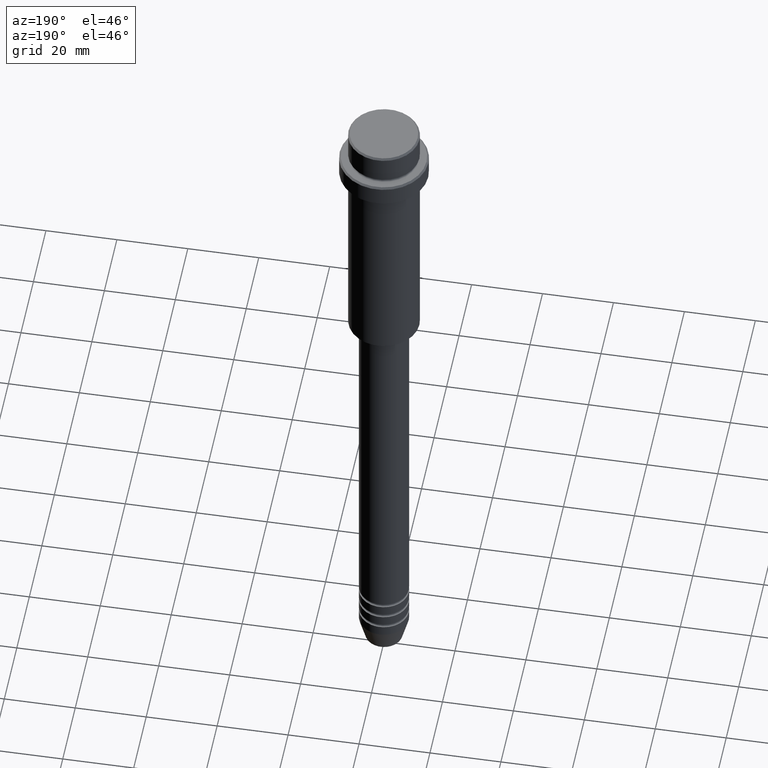
[diagram: clean part render]
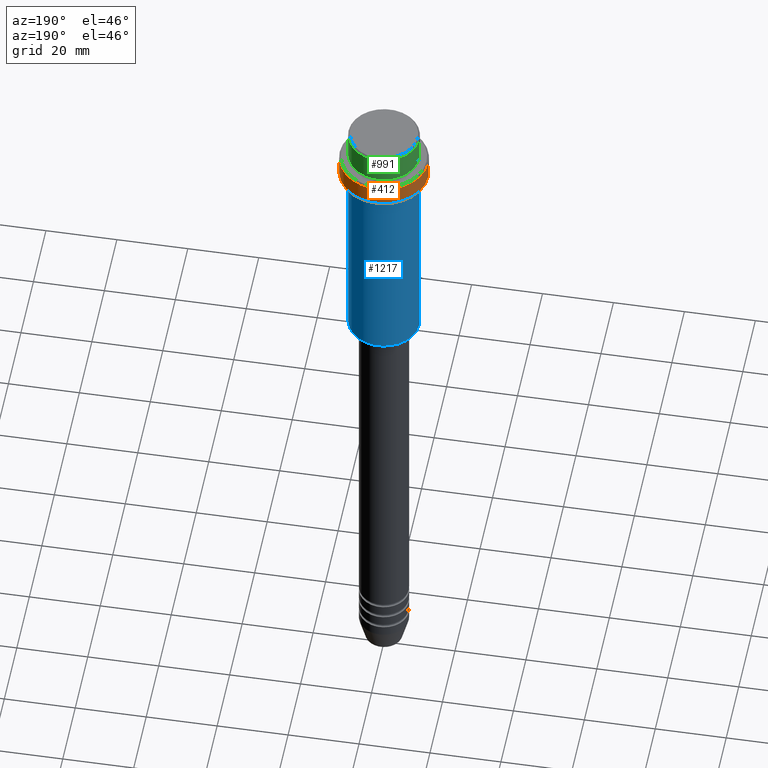
[diagram: same view with three faces highlighted in distinct colors, each labeled with its STEP entity id]
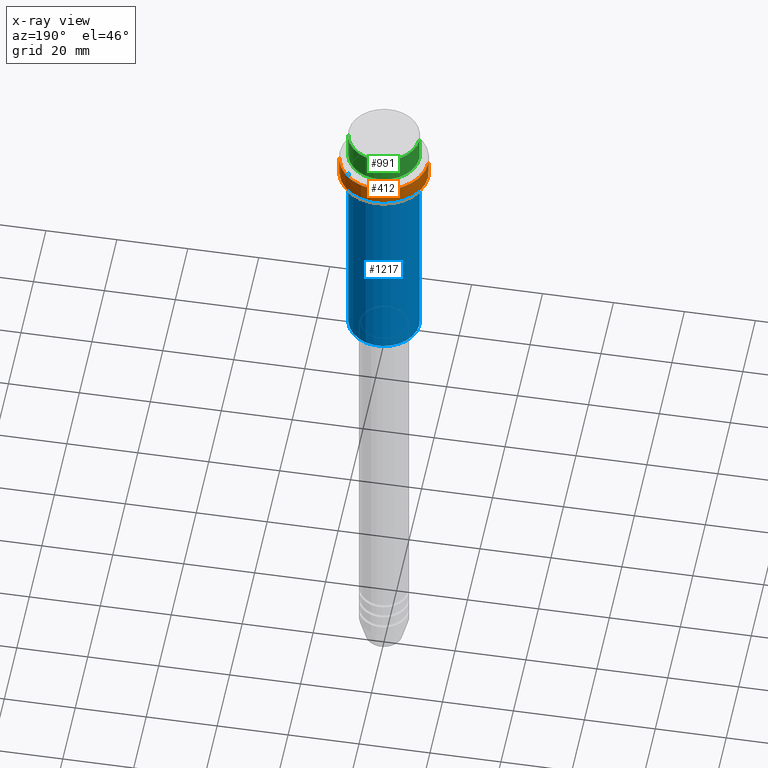
[diagram: x-ray of the same camera — body ghosted, the three highlighted faces saturated]
A machine part, auxiliary view with three faces highlighted in distinct colors.
The next image is the same camera in x-ray (body ghosted, the three faces saturated) — at least one of them is partly hidden behind the body in this view.
Their STEP definitions:

[orange] entity #412 — the highlighted cylindrical surface (partial cylindrical patch) has radius 12.5 mm, axis along (-0, -0, 1).
#59 = ORIENTED_EDGE ( 'NONE', *, *, #205, .T. ) ;
#90 = DIRECTION ( 'NONE',  ( -0.000000000000000000, -0.000000000000000000, 1.000000000000000000 ) ) ;
#109 = DIRECTION ( 'NONE',  ( -0.000000000000000000, -0.000000000000000000, 1.000000000000000000 ) ) ;
#205 = EDGE_CURVE ( 'NONE', #1361, #556, #396, .T. ) ;
#234 = LINE ( 'NONE', #995, #909 ) ;
#238 = EDGE_CURVE ( 'NONE', #556, #487, #682, .T. ) ;
#330 = DIRECTION ( 'NONE',  ( 1.000000000000000000, 0.000000000000000000, 0.000000000000000000 ) ) ;
#396 = LINE ( 'NONE', #949, #1130 ) ;
#398 = EDGE_CURVE ( 'NONE', #1013, #487, #234, .T. ) ;
#405 = DIRECTION ( 'NONE',  ( 1.000000000000000000, 0.000000000000000000, 0.000000000000000000 ) ) ;
#412 = ADVANCED_FACE ( 'NONE', ( #445 ), #1297, .T. ) ;
#445 = FACE_OUTER_BOUND ( 'NONE', #726, .T. ) ;
#477 = AXIS2_PLACEMENT_3D ( 'NONE', #544, #109, #1200 ) ;
#478 = CARTESIAN_POINT ( 'NONE',  ( -12.50000000000000000, 1.530808498934191521E-15, -15.00000000000000000 ) ) ;
#487 = VERTEX_POINT ( 'NONE', #1119 ) ;
#544 = CARTESIAN_POINT ( 'NONE',  ( 0.000000000000000000, 0.000000000000000000, -15.00000000000000000 ) ) ;
#550 = CIRCLE ( 'NONE', #477, 12.50000000000000000 ) ;
#556 = VERTEX_POINT ( 'NONE', #809 ) ;
#576 = CARTESIAN_POINT ( 'NONE',  ( 0.000000000000000000, 0.000000000000000000, 0.000000000000000000 ) ) ;
#682 = CIRCLE ( 'NONE', #1222, 12.50000000000000000 ) ;
#726 = EDGE_LOOP ( 'NONE', ( #1375, #59, #968, #1411 ) ) ;
#738 = DIRECTION ( 'NONE',  ( 0.000000000000000000, 0.000000000000000000, -1.000000000000000000 ) ) ;
#753 = EDGE_CURVE ( 'NONE', #1013, #1361, #550, .T. ) ;
#769 = DIRECTION ( 'NONE',  ( -0.000000000000000000, -0.000000000000000000, 1.000000000000000000 ) ) ;
#809 = CARTESIAN_POINT ( 'NONE',  ( -12.50000000000000000, 1.530808498934191521E-15, -9.500000000000005329 ) ) ;
#830 = CARTESIAN_POINT ( 'NONE',  ( 12.50000000000000000, 0.000000000000000000, -15.00000000000000000 ) ) ;
#909 = VECTOR ( 'NONE', #769, 1000.000000000000000 ) ;
#949 = CARTESIAN_POINT ( 'NONE',  ( -12.50000000000000000, 1.530808498934191521E-15, 0.000000000000000000 ) ) ;
#968 = ORIENTED_EDGE ( 'NONE', *, *, #238, .T. ) ;
#995 = CARTESIAN_POINT ( 'NONE',  ( 12.50000000000000000, 0.000000000000000000, 0.000000000000000000 ) ) ;
#1012 = DIRECTION ( 'NONE',  ( -0.000000000000000000, -0.000000000000000000, 1.000000000000000000 ) ) ;
#1013 = VERTEX_POINT ( 'NONE', #830 ) ;
#1086 = AXIS2_PLACEMENT_3D ( 'NONE', #576, #1012, #330 ) ;
#1119 = CARTESIAN_POINT ( 'NONE',  ( 12.50000000000000000, 0.000000000000000000, -9.500000000000005329 ) ) ;
#1130 = VECTOR ( 'NONE', #90, 1000.000000000000000 ) ;
#1200 = DIRECTION ( 'NONE',  ( 1.000000000000000000, 0.000000000000000000, 0.000000000000000000 ) ) ;
#1222 = AXIS2_PLACEMENT_3D ( 'NONE', #1399, #738, #405 ) ;
#1297 = CYLINDRICAL_SURFACE ( 'NONE', #1086, 12.50000000000000000 ) ;
#1361 = VERTEX_POINT ( 'NONE', #478 ) ;
#1375 = ORIENTED_EDGE ( 'NONE', *, *, #753, .T. ) ;
#1399 = CARTESIAN_POINT ( 'NONE',  ( 0.000000000000000000, 0.000000000000000000, -9.500000000000005329 ) ) ;
#1411 = ORIENTED_EDGE ( 'NONE', *, *, #398, .F. ) ;

[blue] entity #1217 — the highlighted cylindrical surface (edge-blend (fillet) strip) has radius 10 mm, axis along (-0, -0, 1).
#4 = AXIS2_PLACEMENT_3D ( 'NONE', #493, #938, #1359 ) ;
#52 = DIRECTION ( 'NONE',  ( -0.000000000000000000, -0.000000000000000000, 1.000000000000000000 ) ) ;
#114 = AXIS2_PLACEMENT_3D ( 'NONE', #186, #639, #934 ) ;
#158 = EDGE_CURVE ( 'NONE', #953, #907, #349, .T. ) ;
#186 = CARTESIAN_POINT ( 'NONE',  ( 0.000000000000000000, 0.000000000000000000, -16.00000000000000000 ) ) ;
#285 = VERTEX_POINT ( 'NONE', #973 ) ;
#299 = VECTOR ( 'NONE', #52, 1000.000000000000000 ) ;
#334 = CYLINDRICAL_SURFACE ( 'NONE', #733, 9.999999999999998224 ) ;
#349 = CIRCLE ( 'NONE', #4, 9.999999999999998224 ) ;
#364 = CARTESIAN_POINT ( 'NONE',  ( -9.999999999999998224, 1.224646799147353059E-15, -74.50000000000001421 ) ) ;
#383 = ORIENTED_EDGE ( 'NONE', *, *, #158, .T. ) ;
#415 = EDGE_LOOP ( 'NONE', ( #383, #1379, #810, #1102 ) ) ;
#493 = CARTESIAN_POINT ( 'NONE',  ( 0.000000000000000000, 0.000000000000000000, -74.50000000000001421 ) ) ;
#509 = VECTOR ( 'NONE', #537, 1000.000000000000000 ) ;
#523 = CARTESIAN_POINT ( 'NONE',  ( -9.999999999999998224, 1.224646799147353059E-15, -16.00000000000000000 ) ) ;
#537 = DIRECTION ( 'NONE',  ( -0.000000000000000000, -0.000000000000000000, 1.000000000000000000 ) ) ;
#639 = DIRECTION ( 'NONE',  ( -0.000000000000000000, -0.000000000000000000, 1.000000000000000000 ) ) ;
#671 = DIRECTION ( 'NONE',  ( 1.000000000000000000, 0.000000000000000000, 0.000000000000000000 ) ) ;
#723 = CARTESIAN_POINT ( 'NONE',  ( -9.999999999999998224, 1.224646799147353059E-15, 0.000000000000000000 ) ) ;
#733 = AXIS2_PLACEMENT_3D ( 'NONE', #1074, #970, #671 ) ;
#802 = CIRCLE ( 'NONE', #114, 9.999999999999998224 ) ;
#810 = ORIENTED_EDGE ( 'NONE', *, *, #1061, .F. ) ;
#884 = LINE ( 'NONE', #1308, #509 ) ;
#907 = VERTEX_POINT ( 'NONE', #364 ) ;
#934 = DIRECTION ( 'NONE',  ( 1.000000000000000000, 0.000000000000000000, 0.000000000000000000 ) ) ;
#938 = DIRECTION ( 'NONE',  ( -0.000000000000000000, -0.000000000000000000, 1.000000000000000000 ) ) ;
#953 = VERTEX_POINT ( 'NONE', #1235 ) ;
#970 = DIRECTION ( 'NONE',  ( -0.000000000000000000, -0.000000000000000000, 1.000000000000000000 ) ) ;
#973 = CARTESIAN_POINT ( 'NONE',  ( 9.999999999999998224, 0.000000000000000000, -16.00000000000000000 ) ) ;
#1048 = VERTEX_POINT ( 'NONE', #523 ) ;
#1061 = EDGE_CURVE ( 'NONE', #285, #1048, #802, .T. ) ;
#1074 = CARTESIAN_POINT ( 'NONE',  ( 0.000000000000000000, 0.000000000000000000, 0.000000000000000000 ) ) ;
#1102 = ORIENTED_EDGE ( 'NONE', *, *, #1212, .F. ) ;
#1134 = LINE ( 'NONE', #723, #299 ) ;
#1212 = EDGE_CURVE ( 'NONE', #953, #285, #884, .T. ) ;
#1217 = ADVANCED_FACE ( 'NONE', ( #1414 ), #334, .T. ) ;
#1235 = CARTESIAN_POINT ( 'NONE',  ( 9.999999999999998224, 0.000000000000000000, -74.50000000000001421 ) ) ;
#1308 = CARTESIAN_POINT ( 'NONE',  ( 9.999999999999998224, 0.000000000000000000, 0.000000000000000000 ) ) ;
#1359 = DIRECTION ( 'NONE',  ( -1.000000000000000000, 0.000000000000000000, 0.000000000000000000 ) ) ;
#1379 = ORIENTED_EDGE ( 'NONE', *, *, #1390, .T. ) ;
#1390 = EDGE_CURVE ( 'NONE', #907, #1048, #1134, .T. ) ;
#1414 = FACE_OUTER_BOUND ( 'NONE', #415, .T. ) ;

[green] entity #991 — the highlighted cylindrical surface (edge-blend (fillet) strip) has radius 10 mm, axis along (-0, -0, 1).
#56 = LINE ( 'NONE', #693, #1378 ) ;
#80 = CARTESIAN_POINT ( 'NONE',  ( 9.999999999999998224, 0.000000000000000000, -7.999999999999998224 ) ) ;
#128 = ORIENTED_EDGE ( 'NONE', *, *, #469, .F. ) ;
#136 = CYLINDRICAL_SURFACE ( 'NONE', #1070, 9.999999999999998224 ) ;
#168 = VERTEX_POINT ( 'NONE', #832 ) ;
#243 = AXIS2_PLACEMENT_3D ( 'NONE', #388, #1274, #861 ) ;
#388 = CARTESIAN_POINT ( 'NONE',  ( 0.000000000000000000, 0.000000000000000000, -0.4999999999999970024 ) ) ;
#426 = CARTESIAN_POINT ( 'NONE',  ( 0.000000000000000000, 0.000000000000000000, -7.999999999999998224 ) ) ;
#446 = VERTEX_POINT ( 'NONE', #492 ) ;
#453 = DIRECTION ( 'NONE',  ( -0.000000000000000000, -0.000000000000000000, 1.000000000000000000 ) ) ;
#469 = EDGE_CURVE ( 'NONE', #676, #168, #56, .T. ) ;
#492 = CARTESIAN_POINT ( 'NONE',  ( -9.999999999999998224, 1.224646799147353059E-15, -7.999999999999998224 ) ) ;
#572 = EDGE_CURVE ( 'NONE', #925, #168, #1108, .T. ) ;
#583 = CARTESIAN_POINT ( 'NONE',  ( 0.000000000000000000, 0.000000000000000000, 0.000000000000000000 ) ) ;
#676 = VERTEX_POINT ( 'NONE', #80 ) ;
#691 = DIRECTION ( 'NONE',  ( -0.000000000000000000, -0.000000000000000000, 1.000000000000000000 ) ) ;
#693 = CARTESIAN_POINT ( 'NONE',  ( 9.999999999999998224, 0.000000000000000000, 0.000000000000000000 ) ) ;
#759 = VECTOR ( 'NONE', #453, 1000.000000000000000 ) ;
#790 = ORIENTED_EDGE ( 'NONE', *, *, #572, .T. ) ;
#806 = LINE ( 'NONE', #1289, #759 ) ;
#832 = CARTESIAN_POINT ( 'NONE',  ( 9.999999999999998224, 0.000000000000000000, -0.4999999999999970024 ) ) ;
#861 = DIRECTION ( 'NONE',  ( 1.000000000000000000, 0.000000000000000000, 0.000000000000000000 ) ) ;
#864 = DIRECTION ( 'NONE',  ( -0.000000000000000000, -0.000000000000000000, 1.000000000000000000 ) ) ;
#889 = DIRECTION ( 'NONE',  ( 1.000000000000000000, 0.000000000000000000, 0.000000000000000000 ) ) ;
#925 = VERTEX_POINT ( 'NONE', #927 ) ;
#927 = CARTESIAN_POINT ( 'NONE',  ( -9.999999999999998224, 1.224646799147353059E-15, -0.4999999999999970024 ) ) ;
#969 = ORIENTED_EDGE ( 'NONE', *, *, #1294, .T. ) ;
#991 = ADVANCED_FACE ( 'NONE', ( #1326 ), #136, .T. ) ;
#1002 = EDGE_LOOP ( 'NONE', ( #1080, #969, #790, #128 ) ) ;
#1007 = AXIS2_PLACEMENT_3D ( 'NONE', #426, #864, #889 ) ;
#1019 = DIRECTION ( 'NONE',  ( 1.000000000000000000, 0.000000000000000000, 0.000000000000000000 ) ) ;
#1070 = AXIS2_PLACEMENT_3D ( 'NONE', #583, #691, #1019 ) ;
#1080 = ORIENTED_EDGE ( 'NONE', *, *, #1301, .T. ) ;
#1091 = CIRCLE ( 'NONE', #1007, 9.999999999999998224 ) ;
#1108 = CIRCLE ( 'NONE', #243, 9.999999999999998224 ) ;
#1274 = DIRECTION ( 'NONE',  ( 0.000000000000000000, 0.000000000000000000, -1.000000000000000000 ) ) ;
#1289 = CARTESIAN_POINT ( 'NONE',  ( -9.999999999999998224, 1.224646799147353059E-15, 0.000000000000000000 ) ) ;
#1294 = EDGE_CURVE ( 'NONE', #446, #925, #806, .T. ) ;
#1301 = EDGE_CURVE ( 'NONE', #676, #446, #1091, .T. ) ;
#1326 = FACE_OUTER_BOUND ( 'NONE', #1002, .T. ) ;
#1346 = DIRECTION ( 'NONE',  ( -0.000000000000000000, -0.000000000000000000, 1.000000000000000000 ) ) ;
#1378 = VECTOR ( 'NONE', #1346, 1000.000000000000000 ) ;